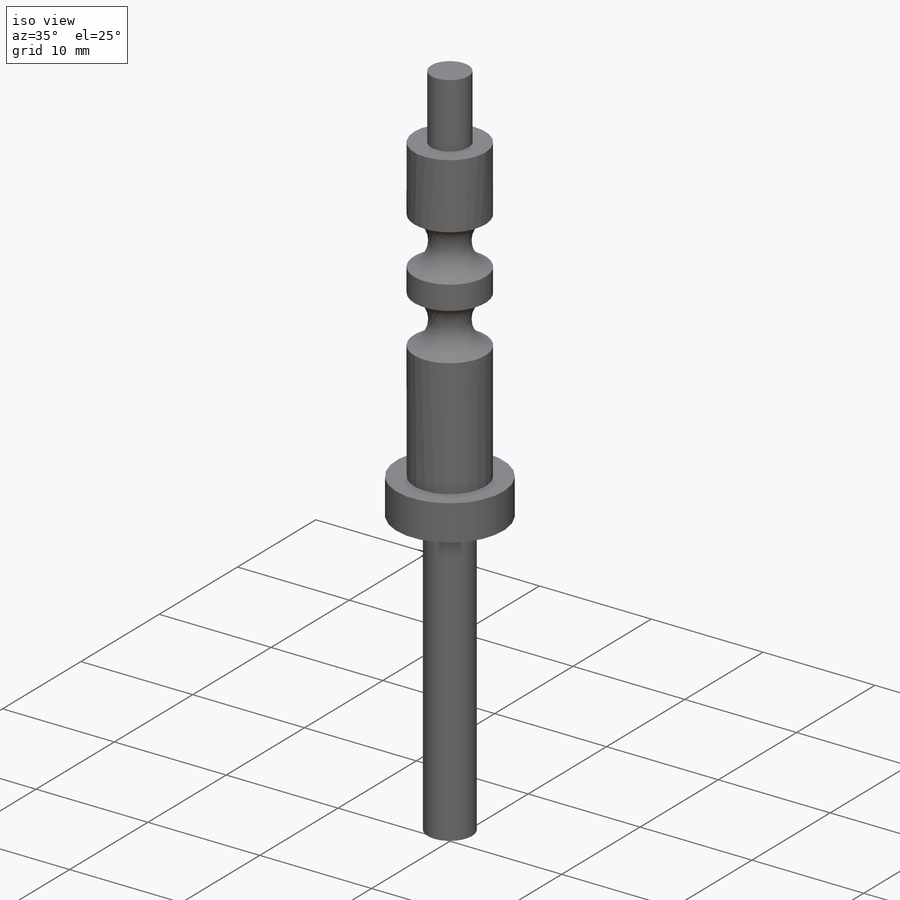
[diagram: iso view]
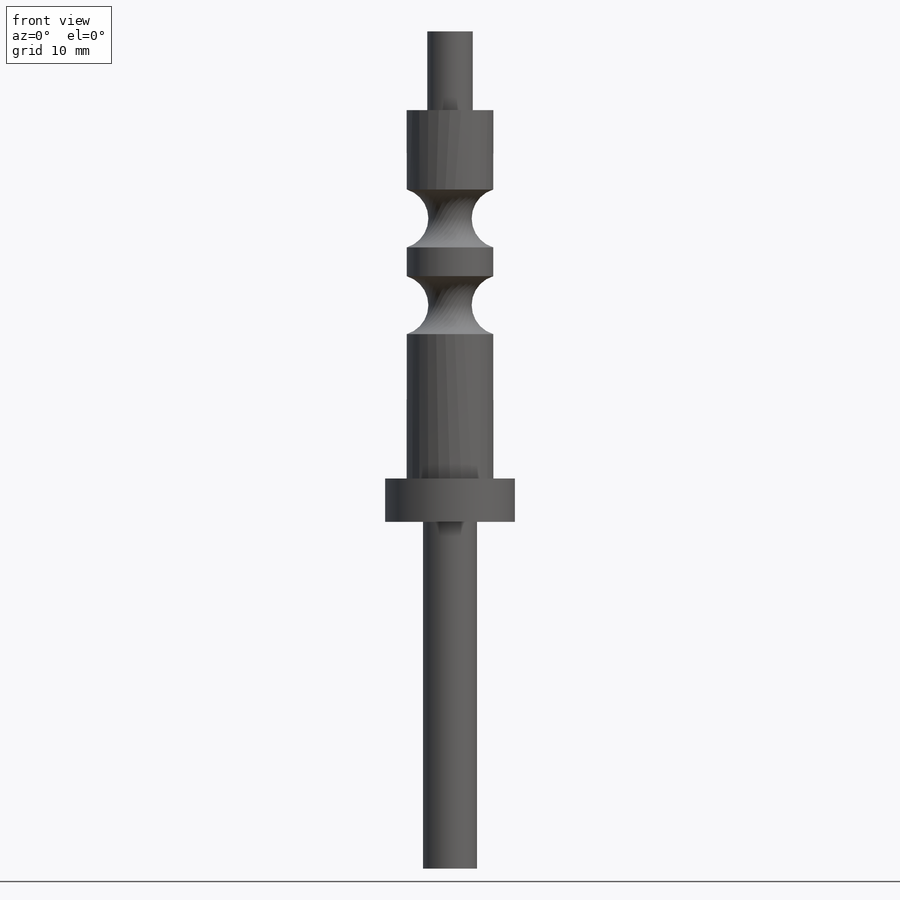
[diagram: front view]
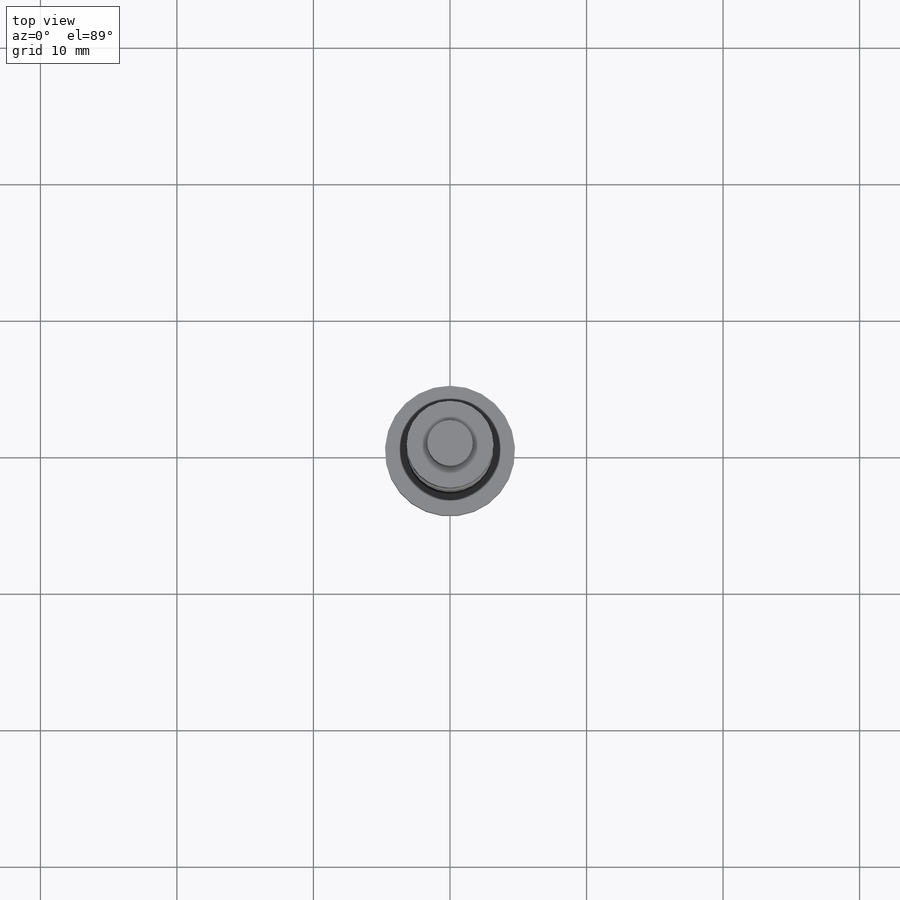
[diagram: top view]
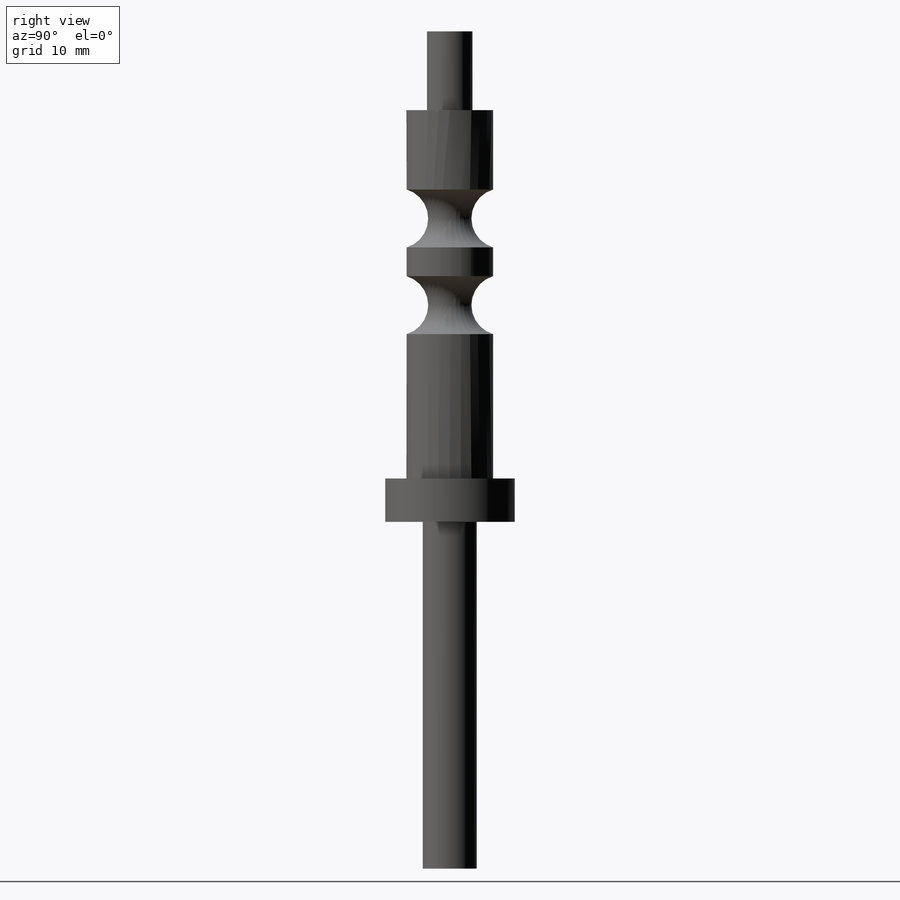
[diagram: right view]
SOLIDWORKS PART (.sldprt)
format: sldprt  version: not decoded by parser v0  size: 200,192 bytes
history: native  units: mm
features: sketch x5, extrude x2, material x1, revolve x1, cut_revolve x1, pattern_linear x1, plane x1 (+12 scaffold rows collapsed)
feature tree (24):
  scaffold x12  (default folders/planes/origin — collapsed)
  material  "Material <not specified>"
  sketch  "Sketch1"  dims[D1=25.4mm D2=30.1625mm D3=5.7658mm D4=1.5875mm D5=24.7142mm D6=5.588mm D7=0.635mm D8=3.3274mm D9=6.35mm D10=3.9624mm]
  revolve  "Revolve1"  Angle=360deg
  sketch  "Sketch2"  dims[D1=6.2992mm]
  extrude  "Boss-Extrude1"  Depth=3.175mm
  sketch  "Sketch3"  dims[D1=6.35mm D2=11.1252mm]
  extrude  "Boss-Extrude2- Rubber Post Sleeve"  Depth=25.4mm
  sketch  "Sketch4"  dims[c1.D1=~1.530849mm c1.D4=1.5875mm c2.D1=3.175mm c2.D2=15.875mm c2.D3=4.2418mm c3.D1=1.5875mm c3.D2=15.875mm]
  cut_revolve  "Cut-Revolve1"  Angle=360deg
  pattern_linear  "LPattern1"  Count1=2 Count2=1 Spacing1=6.35mm Spacing2=2.54mm
  plane  "Plane1"  Offset=15.875mm
  sketch  "Sketch5"  dims[D1=8.255mm]
decode coverage: 10 of 10 modeling features carry decoded parameters
note: ~ marks probable driven/reference dimensions
note: suppression state not decoded; provenance and decode notes live in map.json
